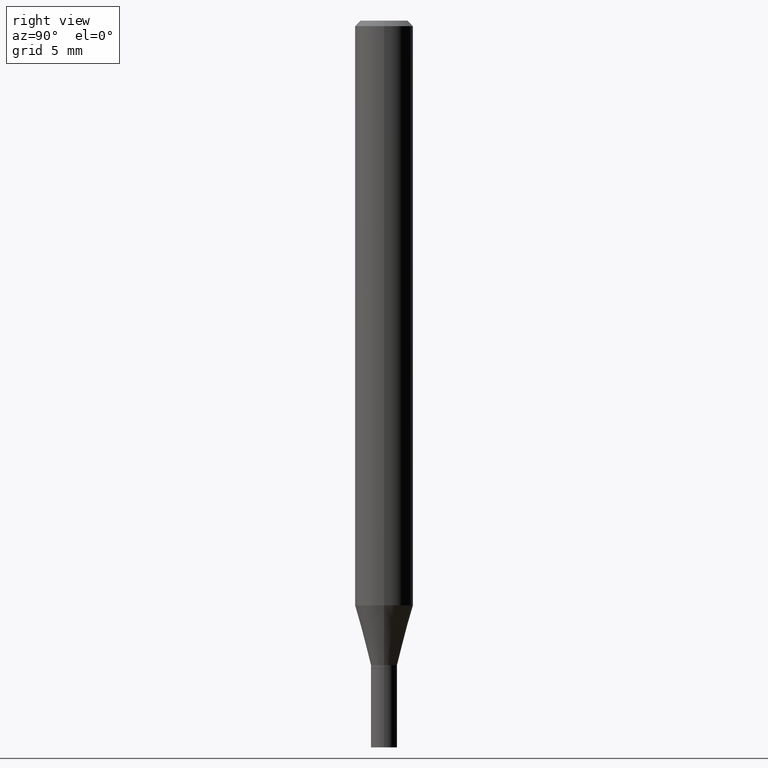
[diagram: clean part render]
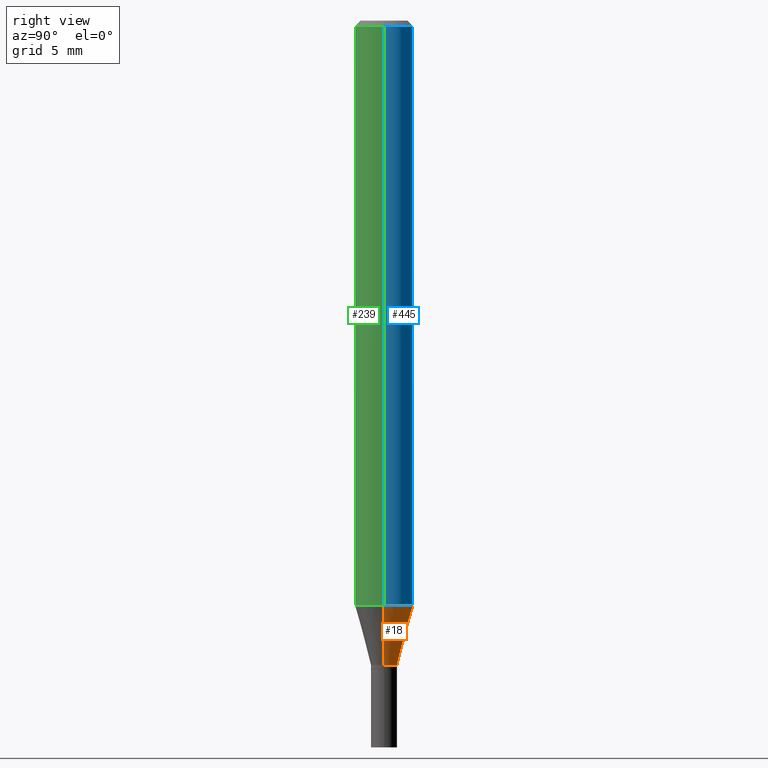
[diagram: same view with three faces highlighted in distinct colors, each labeled with its STEP entity id]
A machine part, right view with three faces highlighted in distinct colors.
Their STEP definitions:

[orange] entity #18 — the highlighted conical surface has half-angle 15 deg.
#12 = DIRECTION ( 'NONE',  ( 1.000000000000000000, -6.982962677686268288E-15, 0.000000000000000000 ) ) ;
#18 = ADVANCED_FACE ( 'NONE', ( #300 ), #258, .T. ) ;
#30 = VECTOR ( 'NONE', #356, 39.37007874015747433 ) ;
#51 = AXIS2_PLACEMENT_3D ( 'NONE', #61, #282, #235 ) ;
#61 = CARTESIAN_POINT ( 'NONE',  ( 4.268565801196156073E-29, -6.094380676950710350E-15, -1.745500000000000052 ) ) ;
#63 = ORIENTED_EDGE ( 'NONE', *, *, #372, .T. ) ;
#77 = ORIENTED_EDGE ( 'NONE', *, *, #453, .F. ) ;
#81 = CARTESIAN_POINT ( 'NONE',  ( 4.268565801196156073E-29, -6.094380676950710350E-15, -1.745500000000000052 ) ) ;
#103 = AXIS2_PLACEMENT_3D ( 'NONE', #106, #391, #462 ) ;
#106 = CARTESIAN_POINT ( 'NONE',  ( 3.873383422226918900E-29, -5.530164973965262003E-15, -1.583902200032266672 ) ) ;
#113 = AXIS2_PLACEMENT_3D ( 'NONE', #81, #305, #12 ) ;
#114 = VERTEX_POINT ( 'NONE', #298 ) ;
#138 = LINE ( 'NONE', #287, #198 ) ;
#143 = CARTESIAN_POINT ( 'NONE',  ( 0.07875000000000000056, -6.080073284833056138E-15, -1.583902200032266672 ) ) ;
#185 = EDGE_LOOP ( 'NONE', ( #212, #63, #322, #77 ) ) ;
#198 = VECTOR ( 'NONE', #354, 39.37007874015747433 ) ;
#212 = ORIENTED_EDGE ( 'NONE', *, *, #226, .T. ) ;
#215 = VERTEX_POINT ( 'NONE', #284 ) ;
#226 = EDGE_CURVE ( 'NONE', #215, #114, #415, .T. ) ;
#235 = DIRECTION ( 'NONE',  ( 1.000000000000000000, -6.982962677686268288E-15, 0.000000000000000000 ) ) ;
#258 = CONICAL_SURFACE ( 'NONE', #113, 0.03544999999999965540, 0.2617993877991501295 ) ;
#282 = DIRECTION ( 'NONE',  ( -2.445468806185136597E-29, 3.491481338843145583E-15, 1.000000000000000000 ) ) ;
#284 = CARTESIAN_POINT ( 'NONE',  ( 0.03544999999999965540, -6.341926703874685867E-15, -1.745500000000000052 ) ) ;
#287 = CARTESIAN_POINT ( 'NONE',  ( 0.03544999999999965540, -6.341926703874685867E-15, -1.745500000000000052 ) ) ;
#293 = CARTESIAN_POINT ( 'NONE',  ( -0.03544999999999965540, -5.842493277123757332E-15, -1.745500000000000052 ) ) ;
#298 = CARTESIAN_POINT ( 'NONE',  ( -0.03544999999999965540, -5.406552923338970267E-15, -1.745500000000000052 ) ) ;
#300 = FACE_OUTER_BOUND ( 'NONE', #185, .T. ) ;
#305 = DIRECTION ( 'NONE',  ( -2.445468806185136597E-29, 3.491481338843145583E-15, 1.000000000000000000 ) ) ;
#320 = VERTEX_POINT ( 'NONE', #143 ) ;
#322 = ORIENTED_EDGE ( 'NONE', *, *, #324, .F. ) ;
#324 = EDGE_CURVE ( 'NONE', #320, #407, #340, .T. ) ;
#340 = CIRCLE ( 'NONE', #103, 0.07875000000000000056 ) ;
#349 = CARTESIAN_POINT ( 'NONE',  ( -0.07875000000000000056, -4.970612569554183991E-15, -1.583902200032266672 ) ) ;
#354 = DIRECTION ( 'NONE',  ( 0.2588190451025214611, 1.565188264969621573E-15, 0.9659258262890682012 ) ) ;
#356 = DIRECTION ( 'NONE',  ( -0.2588190451025214611, 5.211531920934551042E-15, 0.9659258262890682012 ) ) ;
#372 = EDGE_CURVE ( 'NONE', #114, #407, #427, .T. ) ;
#391 = DIRECTION ( 'NONE',  ( -2.445468806185136597E-29, 3.491481338843145583E-15, 1.000000000000000000 ) ) ;
#407 = VERTEX_POINT ( 'NONE', #349 ) ;
#415 = CIRCLE ( 'NONE', #51, 0.03544999999999965540 ) ;
#427 = LINE ( 'NONE', #293, #30 ) ;
#453 = EDGE_CURVE ( 'NONE', #215, #320, #138, .T. ) ;
#462 = DIRECTION ( 'NONE',  ( 1.000000000000000000, -6.982962677686261977E-15, 0.000000000000000000 ) ) ;

[blue] entity #445 — the highlighted cylindrical surface (edge-blend (fillet) strip) has radius 2.0002 mm, axis along (-0, 0, 1).
#10 = AXIS2_PLACEMENT_3D ( 'NONE', #104, #352, #25 ) ;
#25 = DIRECTION ( 'NONE',  ( 1.000000000000000000, -6.982962677686265922E-15, 4.876176775795935232E-29 ) ) ;
#27 = EDGE_CURVE ( 'NONE', #407, #72, #39, .T. ) ;
#39 = LINE ( 'NONE', #192, #75 ) ;
#57 = DIRECTION ( 'NONE',  ( 1.000000000000000000, -6.982962677686265922E-15, 0.000000000000000000 ) ) ;
#67 = ORIENTED_EDGE ( 'NONE', *, *, #345, .F. ) ;
#72 = VERTEX_POINT ( 'NONE', #302 ) ;
#75 = VECTOR ( 'NONE', #373, 39.37007874015748143 ) ;
#101 = FACE_OUTER_BOUND ( 'NONE', #247, .T. ) ;
#103 = AXIS2_PLACEMENT_3D ( 'NONE', #106, #391, #462 ) ;
#104 = CARTESIAN_POINT ( 'NONE',  ( 0.000000000000000000, 0.000000000000000000, 0.000000000000000000 ) ) ;
#106 = CARTESIAN_POINT ( 'NONE',  ( 3.873383422226918900E-29, -5.530164973965262003E-15, -1.583902200032266672 ) ) ;
#142 = ORIENTED_EDGE ( 'NONE', *, *, #27, .T. ) ;
#143 = CARTESIAN_POINT ( 'NONE',  ( 0.07875000000000000056, -6.080073284833056138E-15, -1.583902200032266672 ) ) ;
#180 = VECTOR ( 'NONE', #252, 39.37007874015748143 ) ;
#192 = CARTESIAN_POINT ( 'NONE',  ( -0.07875000000000000056, 5.595524044110789003E-16, -3.873661383575737792E-30 ) ) ;
#200 = AXIS2_PLACEMENT_3D ( 'NONE', #244, #201, #57 ) ;
#201 = DIRECTION ( 'NONE',  ( -2.445468806185136597E-29, 3.491481338843145583E-15, 1.000000000000000000 ) ) ;
#203 = CARTESIAN_POINT ( 'NONE',  ( 0.07875000000000000056, -6.022805309504406221E-16, -0.01499999999999999944 ) ) ;
#244 = CARTESIAN_POINT ( 'NONE',  ( 3.668203209277705088E-31, -5.237222008264718399E-17, -0.01499999999999999944 ) ) ;
#246 = CYLINDRICAL_SURFACE ( 'NONE', #10, 0.07875000000000000056 ) ;
#247 = EDGE_LOOP ( 'NONE', ( #386, #142, #458, #67 ) ) ;
#251 = EDGE_CURVE ( 'NONE', #306, #72, #366, .T. ) ;
#252 = DIRECTION ( 'NONE',  ( -2.445468806185136877E-29, 3.491481338843145188E-15, 1.000000000000000000 ) ) ;
#254 = LINE ( 'NONE', #385, #180 ) ;
#302 = CARTESIAN_POINT ( 'NONE',  ( -0.07875000000000000056, -2.231716192612875937E-15, -0.01499999999999999944 ) ) ;
#306 = VERTEX_POINT ( 'NONE', #203 ) ;
#320 = VERTEX_POINT ( 'NONE', #143 ) ;
#324 = EDGE_CURVE ( 'NONE', #320, #407, #340, .T. ) ;
#340 = CIRCLE ( 'NONE', #103, 0.07875000000000000056 ) ;
#345 = EDGE_CURVE ( 'NONE', #320, #306, #254, .T. ) ;
#349 = CARTESIAN_POINT ( 'NONE',  ( -0.07875000000000000056, -4.970612569554183991E-15, -1.583902200032266672 ) ) ;
#352 = DIRECTION ( 'NONE',  ( -2.445468806185136597E-29, 3.491481338843145583E-15, 1.000000000000000000 ) ) ;
#366 = CIRCLE ( 'NONE', #200, 0.07875000000000000056 ) ;
#373 = DIRECTION ( 'NONE',  ( -2.445468806185136877E-29, 3.491481338843145188E-15, 1.000000000000000000 ) ) ;
#385 = CARTESIAN_POINT ( 'NONE',  ( 0.07875000000000000056, -5.499083108677934443E-16, 3.839989210939299016E-30 ) ) ;
#386 = ORIENTED_EDGE ( 'NONE', *, *, #324, .T. ) ;
#391 = DIRECTION ( 'NONE',  ( -2.445468806185136597E-29, 3.491481338843145583E-15, 1.000000000000000000 ) ) ;
#407 = VERTEX_POINT ( 'NONE', #349 ) ;
#445 = ADVANCED_FACE ( 'NONE', ( #101 ), #246, .T. ) ;
#458 = ORIENTED_EDGE ( 'NONE', *, *, #251, .F. ) ;
#462 = DIRECTION ( 'NONE',  ( 1.000000000000000000, -6.982962677686261977E-15, 0.000000000000000000 ) ) ;

[green] entity #239 — the highlighted cylindrical surface (edge-blend (fillet) strip) has radius 2.0002 mm, axis along (-0, 0, 1).
#22 = CARTESIAN_POINT ( 'NONE',  ( 3.873383422226918900E-29, -5.530164973965262003E-15, -1.583902200032266672 ) ) ;
#26 = EDGE_LOOP ( 'NONE', ( #328, #29, #183, #274 ) ) ;
#27 = EDGE_CURVE ( 'NONE', #407, #72, #39, .T. ) ;
#29 = ORIENTED_EDGE ( 'NONE', *, *, #413, .T. ) ;
#39 = LINE ( 'NONE', #192, #75 ) ;
#58 = CIRCLE ( 'NONE', #64, 0.07875000000000000056 ) ;
#64 = AXIS2_PLACEMENT_3D ( 'NONE', #22, #451, #420 ) ;
#72 = VERTEX_POINT ( 'NONE', #302 ) ;
#75 = VECTOR ( 'NONE', #373, 39.37007874015748143 ) ;
#108 = EDGE_CURVE ( 'NONE', #72, #306, #260, .T. ) ;
#117 = CARTESIAN_POINT ( 'NONE',  ( 3.668203209277705088E-31, -5.237222008264718399E-17, -0.01499999999999999944 ) ) ;
#124 = DIRECTION ( 'NONE',  ( -2.445468806185136597E-29, 3.491481338843145583E-15, 1.000000000000000000 ) ) ;
#129 = DIRECTION ( 'NONE',  ( 1.000000000000000000, -6.982962677686265922E-15, 4.876176775795935232E-29 ) ) ;
#143 = CARTESIAN_POINT ( 'NONE',  ( 0.07875000000000000056, -6.080073284833056138E-15, -1.583902200032266672 ) ) ;
#152 = DIRECTION ( 'NONE',  ( 1.000000000000000000, -6.982962677686265922E-15, 0.000000000000000000 ) ) ;
#180 = VECTOR ( 'NONE', #252, 39.37007874015748143 ) ;
#183 = ORIENTED_EDGE ( 'NONE', *, *, #345, .T. ) ;
#192 = CARTESIAN_POINT ( 'NONE',  ( -0.07875000000000000056, 5.595524044110789003E-16, -3.873661383575737792E-30 ) ) ;
#203 = CARTESIAN_POINT ( 'NONE',  ( 0.07875000000000000056, -6.022805309504406221E-16, -0.01499999999999999944 ) ) ;
#239 = ADVANCED_FACE ( 'NONE', ( #347 ), #376, .T. ) ;
#252 = DIRECTION ( 'NONE',  ( -2.445468806185136877E-29, 3.491481338843145188E-15, 1.000000000000000000 ) ) ;
#254 = LINE ( 'NONE', #385, #180 ) ;
#260 = CIRCLE ( 'NONE', #304, 0.07875000000000000056 ) ;
#274 = ORIENTED_EDGE ( 'NONE', *, *, #108, .F. ) ;
#302 = CARTESIAN_POINT ( 'NONE',  ( -0.07875000000000000056, -2.231716192612875937E-15, -0.01499999999999999944 ) ) ;
#304 = AXIS2_PLACEMENT_3D ( 'NONE', #117, #124, #152 ) ;
#306 = VERTEX_POINT ( 'NONE', #203 ) ;
#307 = CARTESIAN_POINT ( 'NONE',  ( 0.000000000000000000, 0.000000000000000000, 0.000000000000000000 ) ) ;
#320 = VERTEX_POINT ( 'NONE', #143 ) ;
#328 = ORIENTED_EDGE ( 'NONE', *, *, #27, .F. ) ;
#345 = EDGE_CURVE ( 'NONE', #320, #306, #254, .T. ) ;
#347 = FACE_OUTER_BOUND ( 'NONE', #26, .T. ) ;
#349 = CARTESIAN_POINT ( 'NONE',  ( -0.07875000000000000056, -4.970612569554183991E-15, -1.583902200032266672 ) ) ;
#373 = DIRECTION ( 'NONE',  ( -2.445468806185136877E-29, 3.491481338843145188E-15, 1.000000000000000000 ) ) ;
#376 = CYLINDRICAL_SURFACE ( 'NONE', #422, 0.07875000000000000056 ) ;
#385 = CARTESIAN_POINT ( 'NONE',  ( 0.07875000000000000056, -5.499083108677934443E-16, 3.839989210939299016E-30 ) ) ;
#407 = VERTEX_POINT ( 'NONE', #349 ) ;
#413 = EDGE_CURVE ( 'NONE', #407, #320, #58, .T. ) ;
#420 = DIRECTION ( 'NONE',  ( 1.000000000000000000, -6.982962677686261977E-15, 0.000000000000000000 ) ) ;
#422 = AXIS2_PLACEMENT_3D ( 'NONE', #307, #443, #129 ) ;
#443 = DIRECTION ( 'NONE',  ( -2.445468806185136597E-29, 3.491481338843145583E-15, 1.000000000000000000 ) ) ;
#451 = DIRECTION ( 'NONE',  ( -2.445468806185136597E-29, 3.491481338843145583E-15, 1.000000000000000000 ) ) ;